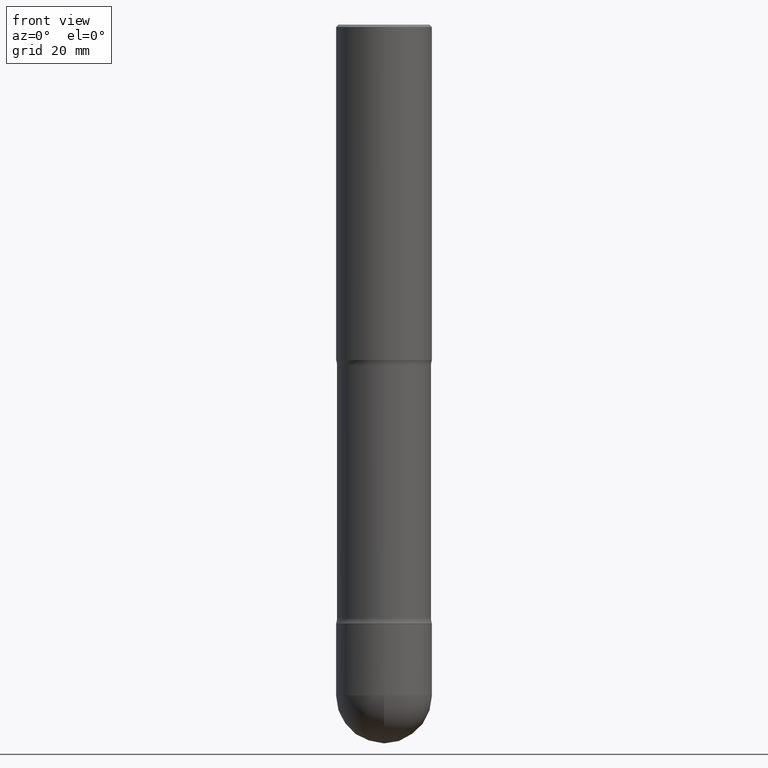
[diagram: clean part render]
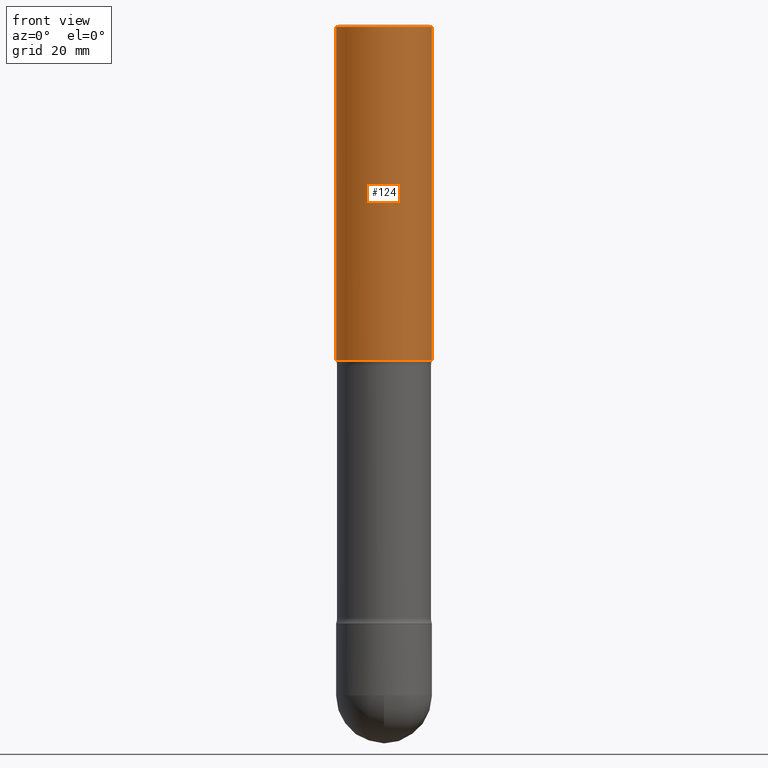
[diagram: same view with one face highlighted and labeled with its STEP entity id]
A machine part, front view. The second image highlights one B-rep face of the part: STEP entity #124.
In plain terms, the highlighted cylindrical surface (partial cylindrical patch) has radius 10 mm, axis along (0, -0, -1).
Its self-contained STEP definition (entity closure, byte-faithful):
#1 = DIRECTION ( 'NONE',  ( 2.445468806185136597E-29, -3.491481338843145583E-15, -1.000000000000000000 ) ) ;
#2 = DIRECTION ( 'NONE',  ( 2.445468806185136877E-29, -3.491481338843145188E-15, -1.000000000000000000 ) ) ;
#31 = VERTEX_POINT ( 'NONE', #531 ) ;
#38 = EDGE_CURVE ( 'NONE', #378, #246, #268, .T. ) ;
#47 = ORIENTED_EDGE ( 'NONE', *, *, #475, .F. ) ;
#53 = EDGE_LOOP ( 'NONE', ( #47, #517, #506, #168 ) ) ;
#61 = CARTESIAN_POINT ( 'NONE',  ( -0.3937000000000001054, -6.872981015512738807E-15, -2.755899999999999572 ) ) ;
#102 = DIRECTION ( 'NONE',  ( -1.000000000000000000, 6.982962677686266711E-15, 0.000000000000000000 ) ) ;
#105 = CARTESIAN_POINT ( 'NONE',  ( 4.890937612370354609E-31, -6.982962677686407473E-17, -0.02000000000000033348 ) ) ;
#121 = DIRECTION ( 'NONE',  ( -1.000000000000000000, 6.982962677686266711E-15, 0.000000000000000000 ) ) ;
#124 = ADVANCED_FACE ( 'NONE', ( #215 ), #449, .T. ) ;
#134 = VERTEX_POINT ( 'NONE', #329 ) ;
#141 = DIRECTION ( 'NONE',  ( -1.000000000000000000, 6.982962677686265133E-15, 0.000000000000000000 ) ) ;
#168 = ORIENTED_EDGE ( 'NONE', *, *, #277, .F. ) ;
#197 = CIRCLE ( 'NONE', #519, 0.3936999999999997724 ) ;
#215 = FACE_OUTER_BOUND ( 'NONE', #53, .T. ) ;
#246 = VERTEX_POINT ( 'NONE', #61 ) ;
#268 = LINE ( 'NONE', #435, #429 ) ;
#277 = EDGE_CURVE ( 'NONE', #31, #246, #359, .T. ) ;
#279 = VECTOR ( 'NONE', #454, 39.37007874015748143 ) ;
#280 = CARTESIAN_POINT ( 'NONE',  ( -0.3936999999999997724, 2.679362779428217157E-15, -0.02000000000000033348 ) ) ;
#284 = CARTESIAN_POINT ( 'NONE',  ( 6.739467482965617111E-29, -9.622173421717822812E-15, -2.755899999999999572 ) ) ;
#329 = CARTESIAN_POINT ( 'NONE',  ( 0.3936999999999997724, -2.770807688499514550E-15, -0.02000000000000033348 ) ) ;
#359 = CIRCLE ( 'NONE', #478, 0.3937000000000001054 ) ;
#371 = EDGE_CURVE ( 'NONE', #134, #378, #197, .T. ) ;
#378 = VERTEX_POINT ( 'NONE', #280 ) ;
#388 = AXIS2_PLACEMENT_3D ( 'NONE', #438, #1, #141 ) ;
#429 = VECTOR ( 'NONE', #2, 39.37007874015748143 ) ;
#435 = CARTESIAN_POINT ( 'NONE',  ( -0.3936999999999999389, -1.443308555850980508E-14, -4.921199999999999797 ) ) ;
#438 = CARTESIAN_POINT ( 'NONE',  ( 1.203464108899829379E-28, -1.718227796471488830E-14, -4.921199999999999797 ) ) ;
#444 = LINE ( 'NONE', #491, #279 ) ;
#449 = CYLINDRICAL_SURFACE ( 'NONE', #388, 0.3936999999999999389 ) ;
#454 = DIRECTION ( 'NONE',  ( 2.445468806185136877E-29, -3.491481338843145188E-15, -1.000000000000000000 ) ) ;
#475 = EDGE_CURVE ( 'NONE', #134, #31, #444, .T. ) ;
#478 = AXIS2_PLACEMENT_3D ( 'NONE', #284, #511, #121 ) ;
#491 = CARTESIAN_POINT ( 'NONE',  ( 0.3936999999999999389, -1.988325602643754074E-14, -4.921199999999999797 ) ) ;
#494 = DIRECTION ( 'NONE',  ( 2.445468806185136597E-29, -3.491481338843145583E-15, -1.000000000000000000 ) ) ;
#506 = ORIENTED_EDGE ( 'NONE', *, *, #38, .T. ) ;
#511 = DIRECTION ( 'NONE',  ( 2.445468806185136597E-29, -3.491481338843145583E-15, -1.000000000000000000 ) ) ;
#517 = ORIENTED_EDGE ( 'NONE', *, *, #371, .T. ) ;
#519 = AXIS2_PLACEMENT_3D ( 'NONE', #105, #494, #102 ) ;
#531 = CARTESIAN_POINT ( 'NONE',  ( 0.3937000000000001609, -7.546979585969993124E-15, -2.755899999999999572 ) ) ;